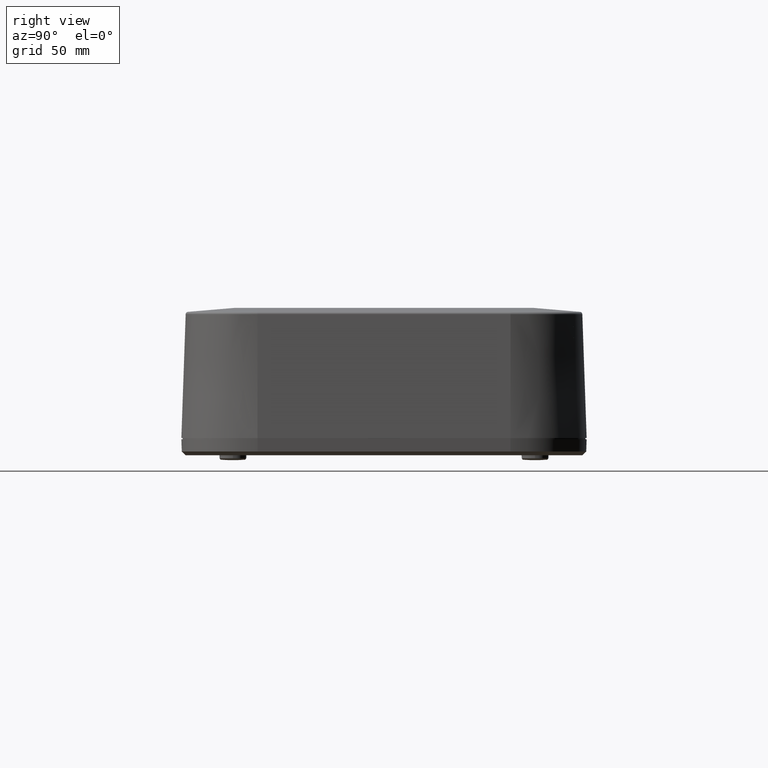
[diagram: clean part render]
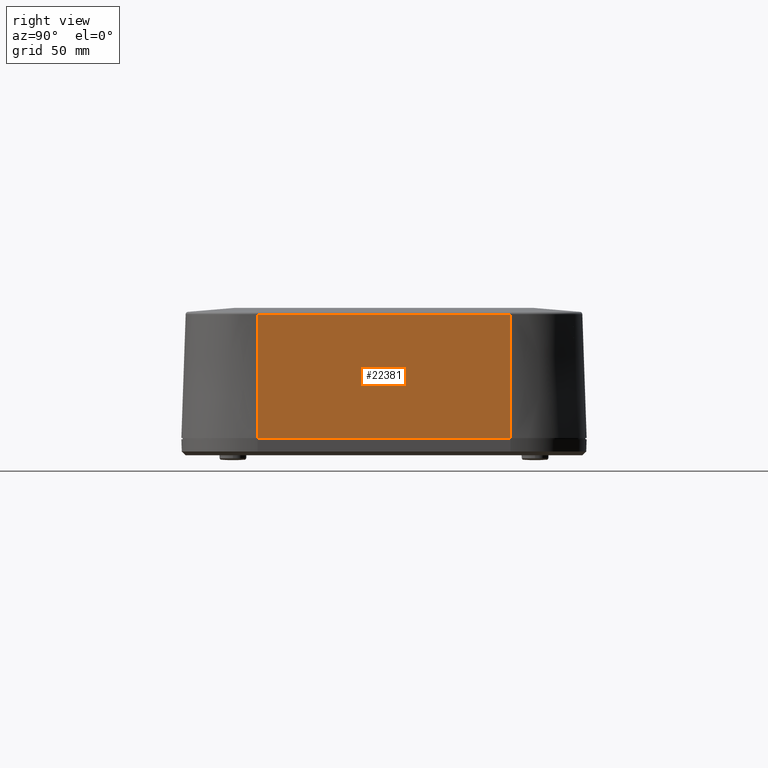
[diagram: same view with one face highlighted and labeled with its STEP entity id]
A machine part, right view. The second image highlights one B-rep face of the part: STEP entity #22381.
In plain terms, the highlighted planar face has unit normal (0.9994, 0, 0.0349).
Its self-contained STEP definition (entity closure, byte-faithful):
#22188=CARTESIAN_POINT('',(120.0,51.5,0.0));
#22189=VERTEX_POINT('',#22188);
#22197=CARTESIAN_POINT('',(120.00000000000003,-51.499999999999993,0.0));
#22198=VERTEX_POINT('',#22197);
#22199=CARTESIAN_POINT('',(120.0,51.5,0.0));
#22200=DIRECTION('',(0.0,-1.0,0.0));
#22201=VECTOR('',#22200,103.0);
#22202=LINE('',#22199,#22201);
#22203=EDGE_CURVE('',#22189,#22198,#22202,.T.);
#22351=CARTESIAN_POINT('',(120.0,51.5,0.0));
#22352=DIRECTION('',(0.999390827019096,3.447135E-016,0.034899496702501));
#22353=DIRECTION('',(0.0,1.0,0.0));
#22354=AXIS2_PLACEMENT_3D('',#22351,#22352,#22353);
#22355=PLANE('',#22354);
#22356=CARTESIAN_POINT('',(118.23949113958464,-51.499999999999993,50.414377633672117));
#22357=VERTEX_POINT('',#22356);
#22358=CARTESIAN_POINT('',(118.23949113958462,51.5,50.414377633672139));
#22359=VERTEX_POINT('',#22358);
#22360=CARTESIAN_POINT('',(118.23949113958464,-51.5,50.414377633672139));
#22361=DIRECTION('',(0.0,1.0,0.0));
#22362=VECTOR('',#22361,103.0);
#22363=LINE('',#22360,#22362);
#22364=EDGE_CURVE('',#22357,#22359,#22363,.T.);
#22365=ORIENTED_EDGE('',*,*,#22364,.F.);
#22366=CARTESIAN_POINT('',(120.00000000000003,-51.499999999999993,0.0));
#22367=DIRECTION('',(-0.034899496702501,0.0,0.999390827019096));
#22368=VECTOR('',#22367,50.445107430137362);
#22369=LINE('',#22366,#22368);
#22370=EDGE_CURVE('',#22198,#22357,#22369,.T.);
#22371=ORIENTED_EDGE('',*,*,#22370,.F.);
#22372=ORIENTED_EDGE('',*,*,#22203,.F.);
#22373=CARTESIAN_POINT('',(120.0,51.5,0.0));
#22374=DIRECTION('',(-0.034899496702501,0.0,0.999390827019096));
#22375=VECTOR('',#22374,50.445107430137391);
#22376=LINE('',#22373,#22375);
#22377=EDGE_CURVE('',#22189,#22359,#22376,.T.);
#22378=ORIENTED_EDGE('',*,*,#22377,.T.);
#22379=EDGE_LOOP('',(#22365,#22371,#22372,#22378));
#22380=FACE_OUTER_BOUND('',#22379,.T.);
#22381=ADVANCED_FACE('',(#22380),#22355,.T.);